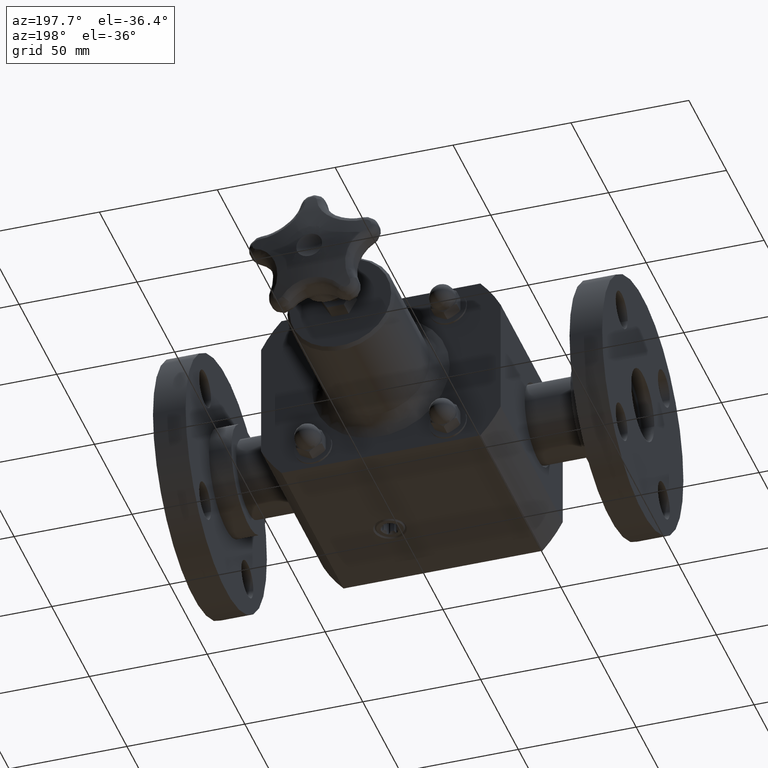
[diagram: clean part render]
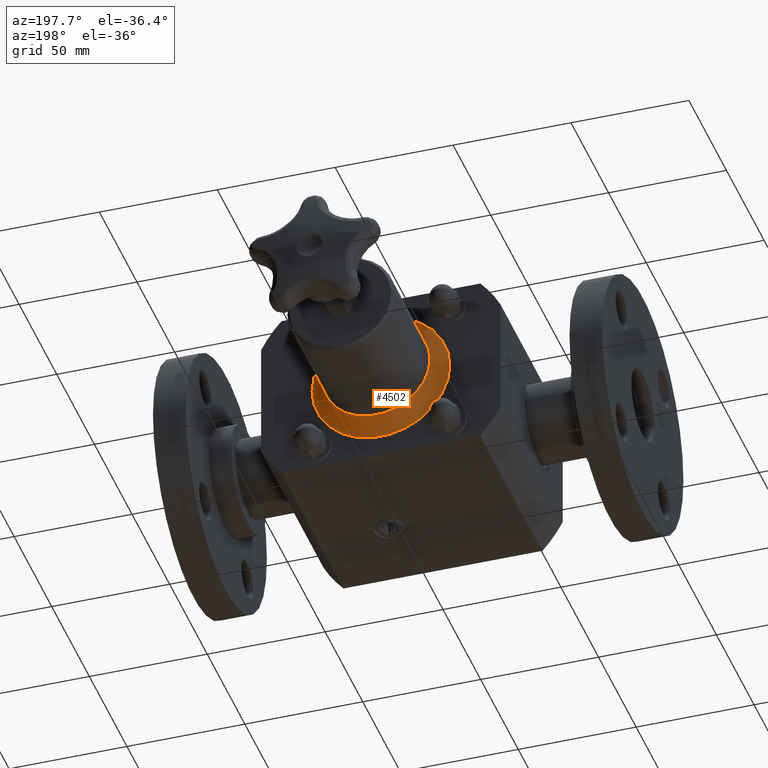
[diagram: same view with one face highlighted and labeled with its STEP entity id]
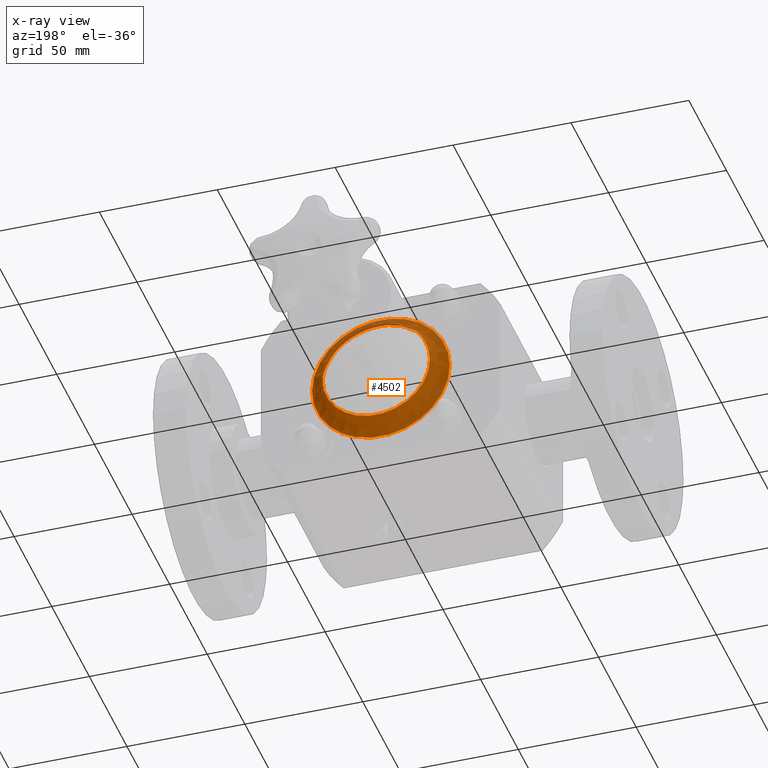
[diagram: x-ray of the same camera — body ghosted, the highlighted face saturated]
A machine part, auxiliary view. The second image highlights one B-rep face of the part: STEP entity #4502.
The next image is the same camera in x-ray: the body ghosted, the highlighted face saturated — about 15% of this face is hidden behind the body in this view.
In plain terms, the highlighted face is a freeform B-spline surface patch.
Its self-contained STEP definition (entity closure, byte-faithful):
#4420=CARTESIAN_POINT('',(0.900000000000001,3.500000000000000,7.037240E-016));
#4421=VERTEX_POINT('',#4420);
#4422=CARTESIAN_POINT('',(6.993531E-016,3.500000000000000,5.463696E-016));
#4423=DIRECTION('',(0.0,-1.0,0.0));
#4424=DIRECTION('',(1.0,0.0,0.0));
#4425=AXIS2_PLACEMENT_3D('',#4422,#4423,#4424);
#4426=CIRCLE('',#4425,0.900000000000000);
#4427=EDGE_CURVE('',#4421,#4421,#4426,.T.);
#4435=CARTESIAN_POINT('',(2.831290E-016,3.500000000000000,1.400000000000001));
#4436=CARTESIAN_POINT('',(2.831290E-016,3.250000000000000,1.400000000000001));
#4437=CARTESIAN_POINT('',(3.574547E-016,3.250000000000000,1.150000000000001));
#4438=CARTESIAN_POINT('',(4.317804E-016,3.249999999999999,0.900000000000001));
#4439=CARTESIAN_POINT('',(4.317804E-016,3.500000000000000,0.900000000000001));
#4440=CARTESIAN_POINT('',(-1.400000000000000,3.500000000000000,1.400000000000000));
#4441=CARTESIAN_POINT('',(-1.400000000000000,3.250000000000000,1.400000000000000));
#4442=CARTESIAN_POINT('',(-1.150000000000000,3.250000000000000,1.150000000000000));
#4443=CARTESIAN_POINT('',(-0.900000000000000,3.250000000000000,0.900000000000000));
#4444=CARTESIAN_POINT('',(-0.900000000000000,3.500000000000000,0.900000000000000));
#4445=CARTESIAN_POINT('',(-1.400000000000000,3.500000000000000,1.301455E-016));
#4446=CARTESIAN_POINT('',(-1.400000000000000,3.250000000000000,1.301455E-016));
#4447=CARTESIAN_POINT('',(-1.150000000000000,3.250000000000000,2.044712E-016));
#4448=CARTESIAN_POINT('',(-0.900000000000000,3.249999999999999,2.787969E-016));
#4449=CARTESIAN_POINT('',(-0.900000000000000,3.500000000000000,2.787969E-016));
#4450=CARTESIAN_POINT('',(-1.399999999999999,3.500000000000000,-1.400000000000000));
#4451=CARTESIAN_POINT('',(-1.399999999999999,3.250000000000000,-1.400000000000000));
#4452=CARTESIAN_POINT('',(-1.149999999999999,3.250000000000000,-1.150000000000000));
#4453=CARTESIAN_POINT('',(-0.899999999999999,3.250000000000000,-0.900000000000000));
#4454=CARTESIAN_POINT('',(-0.899999999999999,3.500000000000000,-0.900000000000000));
#4455=CARTESIAN_POINT('',(1.115577E-015,3.500000000000000,-1.400000000000000));
#4456=CARTESIAN_POINT('',(1.115577E-015,3.250000000000000,-1.400000000000000));
#4457=CARTESIAN_POINT('',(1.041251E-015,3.250000000000000,-1.150000000000000));
#4458=CARTESIAN_POINT('',(9.669257E-016,3.249999999999999,-0.900000000000000));
#4459=CARTESIAN_POINT('',(9.669257E-016,3.500000000000000,-0.900000000000000));
#4460=CARTESIAN_POINT('',(1.400000000000001,3.500000000000000,-1.399999999999999));
#4461=CARTESIAN_POINT('',(1.400000000000001,3.250000000000000,-1.399999999999999));
#4462=CARTESIAN_POINT('',(1.150000000000001,3.250000000000000,-1.149999999999999));
#4463=CARTESIAN_POINT('',(0.900000000000001,3.250000000000000,-0.899999999999999));
#4464=CARTESIAN_POINT('',(0.900000000000001,3.500000000000000,-0.899999999999999));
#4465=CARTESIAN_POINT('',(1.400000000000001,3.500000000000000,9.625937E-016));
#4466=CARTESIAN_POINT('',(1.400000000000001,3.250000000000000,9.625937E-016));
#4467=CARTESIAN_POINT('',(1.150000000000001,3.250000000000000,8.882680E-016));
#4468=CARTESIAN_POINT('',(0.900000000000001,3.249999999999999,8.139423E-016));
#4469=CARTESIAN_POINT('',(0.900000000000001,3.500000000000000,8.139423E-016));
#4470=CARTESIAN_POINT('',(1.400000000000000,3.500000000000000,1.400000000000001));
#4471=CARTESIAN_POINT('',(1.400000000000000,3.250000000000000,1.400000000000001));
#4472=CARTESIAN_POINT('',(1.150000000000000,3.250000000000000,1.150000000000001));
#4473=CARTESIAN_POINT('',(0.900000000000000,3.250000000000000,0.900000000000001));
#4474=CARTESIAN_POINT('',(0.900000000000000,3.500000000000000,0.900000000000001));
#4475=CARTESIAN_POINT('',(2.831290E-016,3.500000000000000,1.400000000000001));
#4476=CARTESIAN_POINT('',(2.831290E-016,3.250000000000000,1.400000000000001));
#4477=CARTESIAN_POINT('',(3.574547E-016,3.250000000000000,1.150000000000001));
#4478=CARTESIAN_POINT('',(4.317804E-016,3.249999999999999,0.900000000000001));
#4479=CARTESIAN_POINT('',(4.317804E-016,3.500000000000000,0.900000000000001));
#4487=(BOUNDED_SURFACE()B_SPLINE_SURFACE(2,2,((#4435,#4440,#4445,#4450,#4455,#4460,#4465,#4470,#4475),(#4436,#4441,#4446,#4451,#4456,#4461,#4466,#4471,#4476),(#4437,#4442,#4447,#4452,#4457,#4462,#4467,#4472,#4477),(#4438,#4443,#4448,#4453,#4458,#4463,#4468,#4473,#4478),(#4439,#4444,#4449,#4454,#4459,#4464,#4469,#4474,#4479)),.UNSPECIFIED.,.F.,.T.,.U.)B_SPLINE_SURFACE_WITH_KNOTS((3,2,3),(3,2,2,2,3),(-2.659212E-044,1.570796326794897,3.141592653589793),(0.0,1.570796326794897,3.141592653589793,4.712388980384690,6.283185307179586),.UNSPECIFIED.)GEOMETRIC_REPRESENTATION_ITEM()RATIONAL_B_SPLINE_SURFACE(((1.0,0.707106781186548,1.0,0.707106781186548,1.0,0.707106781186548,1.0,0.707106781186548,1.0),(0.707106781186550,0.500000000000002,0.707106781186550,0.500000000000002,0.707106781186550,0.500000000000002,0.707106781186550,0.500000000000002,0.707106781186550),(1.0,0.707106781186548,1.0,0.707106781186548,1.0,0.707106781186548,1.0,0.707106781186548,1.0),(0.707106781186548,0.500000000000001,0.707106781186548,0.500000000000001,0.707106781186548,0.500000000000001,0.707106781186548,0.500000000000001,0.707106781186548),(1.0,0.707106781186548,1.0,0.707106781186548,1.0,0.707106781186548,1.0,0.707106781186548,1.0)))REPRESENTATION_ITEM('')SURFACE());
#4488=CARTESIAN_POINT('',(1.150000000000001,3.250000000000000,7.474336E-016));
#4489=VERTEX_POINT('',#4488);
#4490=CARTESIAN_POINT('',(6.993531E-016,3.250000000000000,5.463696E-016));
#4491=DIRECTION('',(0.0,-1.0,0.0));
#4492=DIRECTION('',(1.0,0.0,0.0));
#4493=AXIS2_PLACEMENT_3D('',#4490,#4491,#4492);
#4494=CIRCLE('',#4493,1.150000000000000);
#4495=EDGE_CURVE('',#4489,#4489,#4494,.T.);
#4496=ORIENTED_EDGE('',*,*,#4495,.F.);
#4497=EDGE_LOOP('',(#4496));
#4498=FACE_OUTER_BOUND('',#4497,.T.);
#4499=ORIENTED_EDGE('',*,*,#4427,.T.);
#4500=EDGE_LOOP('',(#4499));
#4501=FACE_BOUND('',#4500,.T.);
#4502=ADVANCED_FACE('',(#4498,#4501),#4487,.T.);